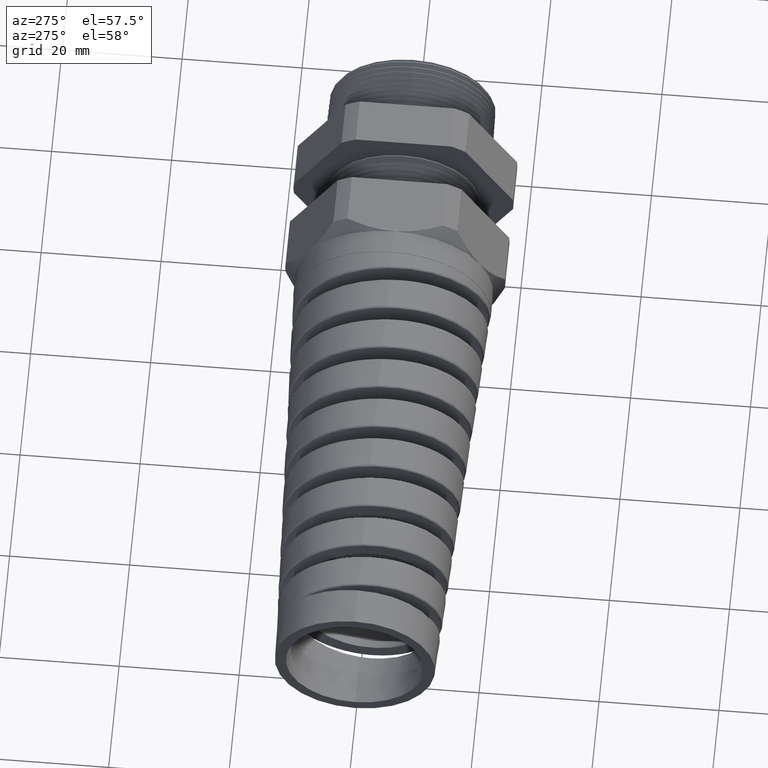
[diagram: clean part render]
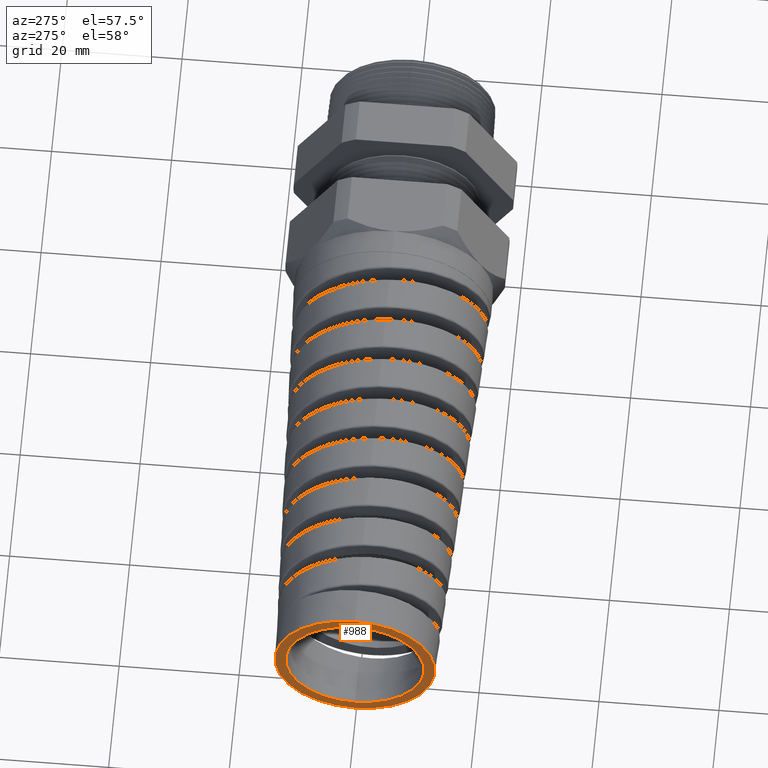
[diagram: same view with one face highlighted and labeled with its STEP entity id]
A machine part, auxiliary view. The second image highlights one B-rep face of the part: STEP entity #988.
In plain terms, the highlighted planar face has unit normal (-1, 0, 0).
Its self-contained STEP definition (entity closure, byte-faithful):
#988 = ADVANCED_FACE ( 'NONE', ( #5212, #5211 ), #5210, .T. ) ;
#990 = EDGE_LOOP ( 'NONE', ( #991, #992 ) ) ;
#991 = ORIENTED_EDGE ( 'NONE', *, *, #1256, .T. ) ;
#992 = ORIENTED_EDGE ( 'NONE', *, *, #1232, .T. ) ;
#993 = EDGE_LOOP ( 'NONE', ( #994, #1058 ) ) ;
#994 = ORIENTED_EDGE ( 'NONE', *, *, #1057, .F. ) ;
#1057 = EDGE_CURVE ( 'NONE', #1401, #1448, #8483, .T. ) ;
#1058 = ORIENTED_EDGE ( 'NONE', *, *, #1447, .F. ) ;
#1232 = EDGE_CURVE ( 'NONE', #1233, #1234, #8917, .T. ) ;
#1233 = VERTEX_POINT ( 'NONE', #8912 ) ;
#1234 = VERTEX_POINT ( 'NONE', #8911 ) ;
#1256 = EDGE_CURVE ( 'NONE', #1234, #1233, #11817, .T. ) ;
#1401 = VERTEX_POINT ( 'NONE', #12206 ) ;
#1447 = EDGE_CURVE ( 'NONE', #1448, #1401, #12304, .T. ) ;
#1448 = VERTEX_POINT ( 'NONE', #12299 ) ;
#5206 = DIRECTION ( 'NONE',  ( 0.0000000000000000000, 0.0000000000000000000, 1.000000000000000000 ) ) ;
#5207 = DIRECTION ( 'NONE',  ( -1.000000000000000000, 0.0000000000000000000, 0.0000000000000000000 ) ) ;
#5208 = CARTESIAN_POINT ( 'NONE',  ( -4.250000472440945000, 0.0000000000000000000, 0.0000000000000000000 ) ) ;
#5209 = AXIS2_PLACEMENT_3D ( 'NONE', #5208, #5207, #5206 ) ;
#5210 = PLANE ( 'NONE',  #5209 ) ;
#5211 = FACE_BOUND ( 'NONE', #993, .T. ) ;
#5212 = FACE_OUTER_BOUND ( 'NONE', #990, .T. ) ;
#8480 = DIRECTION ( 'NONE',  ( 0.0000000000000000000, 0.0000000000000000000, 1.000000000000000000 ) ) ;
#8481 = DIRECTION ( 'NONE',  ( -1.000000000000000000, 0.0000000000000000000, 0.0000000000000000000 ) ) ;
#8482 = AXIS2_PLACEMENT_3D ( 'NONE', #8488, #8481, #8480 ) ;
#8483 = CIRCLE ( 'NONE', #8482, 0.4543136085605106200 ) ;
#8488 = CARTESIAN_POINT ( 'NONE',  ( -4.250000472440945000, 0.0000000000000000000, 0.0000000000000000000 ) ) ;
#8911 = CARTESIAN_POINT ( 'NONE',  ( -4.250000472440945000, 0.0000000000000000000, -0.5260029015126145300 ) ) ;
#8912 = CARTESIAN_POINT ( 'NONE',  ( -4.250000472440945000, 6.611871126819908300E-017, 0.5260029015126145300 ) ) ;
#8913 = DIRECTION ( 'NONE',  ( 0.0000000000000000000, 0.0000000000000000000, 1.000000000000000000 ) ) ;
#8914 = DIRECTION ( 'NONE',  ( -1.000000000000000000, 0.0000000000000000000, 0.0000000000000000000 ) ) ;
#8915 = CARTESIAN_POINT ( 'NONE',  ( -4.250000472440945000, 0.0000000000000000000, 0.0000000000000000000 ) ) ;
#8916 = AXIS2_PLACEMENT_3D ( 'NONE', #8915, #8914, #8913 ) ;
#8917 = CIRCLE ( 'NONE', #8916, 0.5260029015126145300 ) ;
#11814 = DIRECTION ( 'NONE',  ( 0.0000000000000000000, 0.0000000000000000000, 1.000000000000000000 ) ) ;
#11815 = DIRECTION ( 'NONE',  ( -1.000000000000000000, 0.0000000000000000000, 0.0000000000000000000 ) ) ;
#11816 = AXIS2_PLACEMENT_3D ( 'NONE', #11822, #11815, #11814 ) ;
#11817 = CIRCLE ( 'NONE', #11816, 0.5260029015126145300 ) ;
#11822 = CARTESIAN_POINT ( 'NONE',  ( -4.250000472440945000, 0.0000000000000000000, 0.0000000000000000000 ) ) ;
#12206 = CARTESIAN_POINT ( 'NONE',  ( -4.250000472440945000, 0.0000000000000000000, 0.4543136085605106200 ) ) ;
#12299 = CARTESIAN_POINT ( 'NONE',  ( -4.250000472440945000, 5.563737065327129100E-017, -0.4543136085605106200 ) ) ;
#12300 = DIRECTION ( 'NONE',  ( 0.0000000000000000000, 0.0000000000000000000, 1.000000000000000000 ) ) ;
#12301 = DIRECTION ( 'NONE',  ( -1.000000000000000000, 0.0000000000000000000, 0.0000000000000000000 ) ) ;
#12302 = CARTESIAN_POINT ( 'NONE',  ( -4.250000472440945000, 0.0000000000000000000, 0.0000000000000000000 ) ) ;
#12303 = AXIS2_PLACEMENT_3D ( 'NONE', #12302, #12301, #12300 ) ;
#12304 = CIRCLE ( 'NONE', #12303, 0.4543136085605106200 ) ;